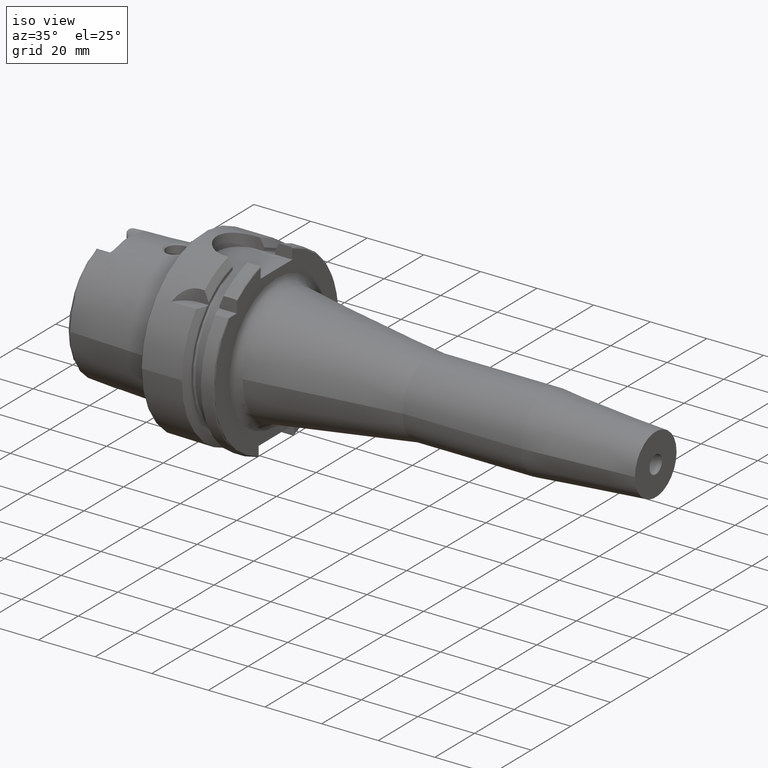
[diagram: clean part render]
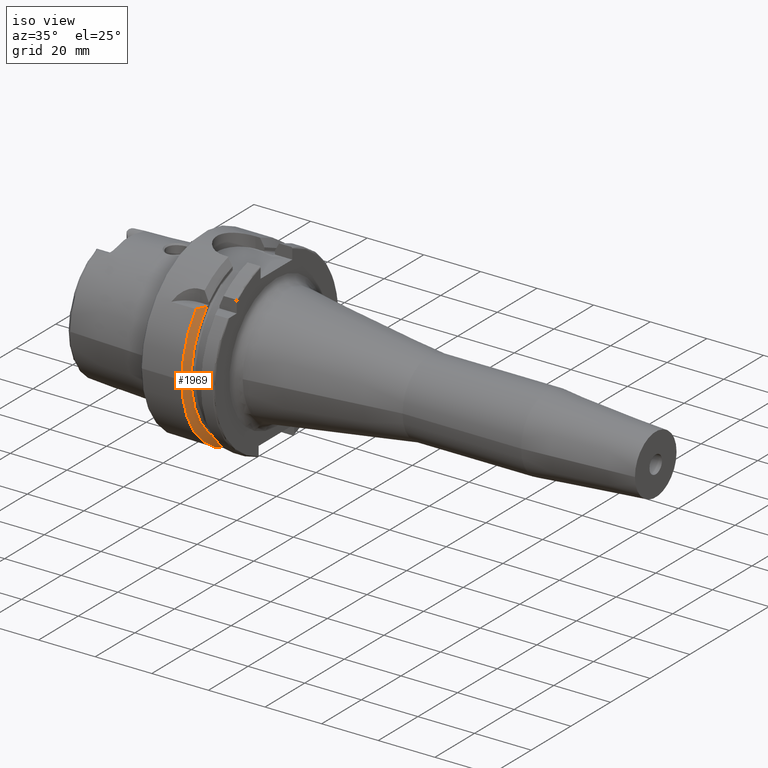
[diagram: same view with one face highlighted and labeled with its STEP entity id]
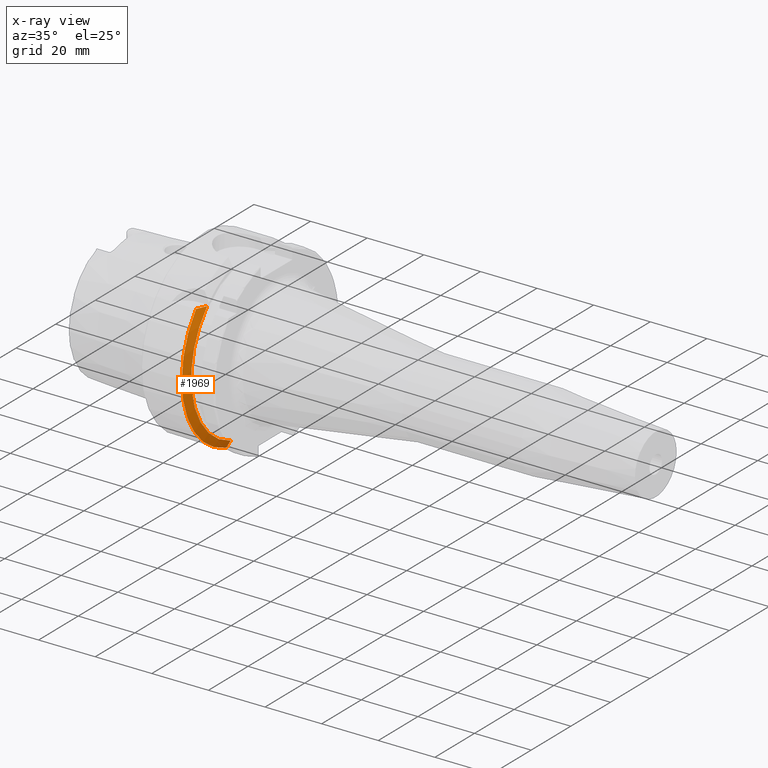
[diagram: x-ray of the same camera — body ghosted, the highlighted face saturated]
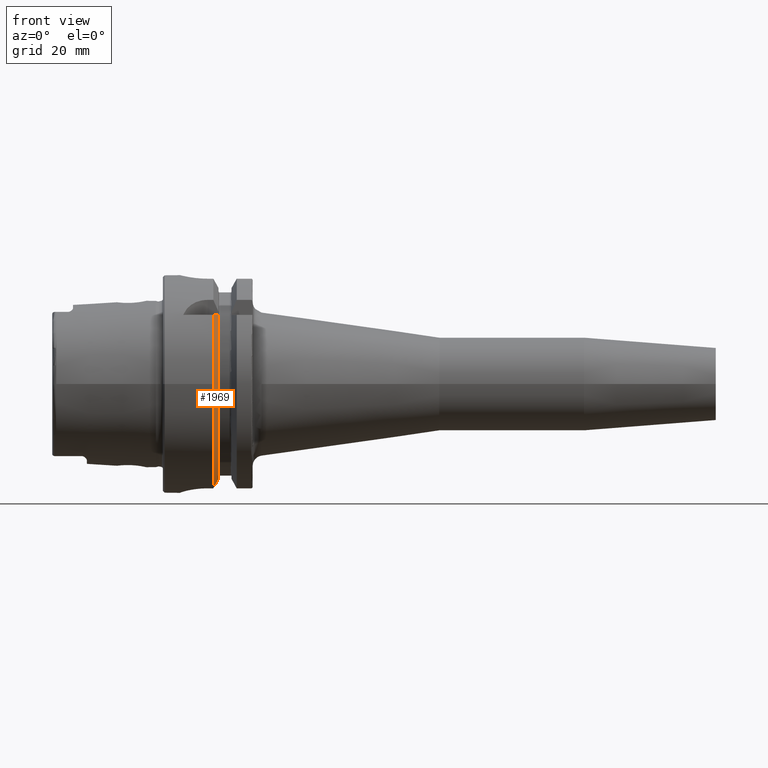
[diagram: same view with one face highlighted and labeled with its STEP entity id]
A machine part, iso view. The second image highlights one B-rep face of the part: STEP entity #1969.
The next image is the same camera in x-ray: the body ghosted, the highlighted face saturated — about 0% of this face is hidden behind the body in this view.
A second angle (front view) of the same face is appended — the face is thin or edge-on in the first view.
In plain terms, the highlighted conical surface has half-angle 60 deg.
Its self-contained STEP definition (entity closure, byte-faithful):
#18=(
BOUNDED_CURVE()
B_SPLINE_CURVE(2,(#3765,#3766,#3767),.UNSPECIFIED.,.F.,.F.)
B_SPLINE_CURVE_WITH_KNOTS((3,3),(0.,0.378858277140998),.UNSPECIFIED.)
CURVE()
GEOMETRIC_REPRESENTATION_ITEM()
RATIONAL_B_SPLINE_CURVE((1.,1.00166199353848,1.))
REPRESENTATION_ITEM('')
);
#21=(
BOUNDED_CURVE()
B_SPLINE_CURVE(2,(#3825,#3826,#3827),.UNSPECIFIED.,.F.,.F.)
B_SPLINE_CURVE_WITH_KNOTS((3,3),(0.,0.311314369989023),.UNSPECIFIED.)
CURVE()
GEOMETRIC_REPRESENTATION_ITEM()
RATIONAL_B_SPLINE_CURVE((1.,1.00102053193494,1.))
REPRESENTATION_ITEM('')
);
#402=CONICAL_SURFACE('',#2165,30.1987976320958,1.0471975511966);
#455=FACE_OUTER_BOUND('',#577,.T.);
#577=EDGE_LOOP('',(#1516,#1517,#1518,#1519,#1520));
#705=CIRCLE('',#2162,28.8975952641916);
#708=CIRCLE('',#2166,31.5);
#709=CIRCLE('',#2167,31.5);
#882=VERTEX_POINT('',#3757);
#885=VERTEX_POINT('',#3763);
#892=VERTEX_POINT('',#3811);
#896=VERTEX_POINT('',#3821);
#897=VERTEX_POINT('',#3823);
#1118=EDGE_CURVE('',#882,#885,#18,.T.);
#1128=EDGE_CURVE('',#882,#892,#705,.T.);
#1133=EDGE_CURVE('',#885,#896,#708,.T.);
#1134=EDGE_CURVE('',#896,#897,#709,.T.);
#1135=EDGE_CURVE('',#897,#892,#21,.T.);
#1516=ORIENTED_EDGE('',*,*,#1118,.T.);
#1517=ORIENTED_EDGE('',*,*,#1133,.T.);
#1518=ORIENTED_EDGE('',*,*,#1134,.T.);
#1519=ORIENTED_EDGE('',*,*,#1135,.T.);
#1520=ORIENTED_EDGE('',*,*,#1128,.F.);
#1969=ADVANCED_FACE('',(#455),#402,.T.);
#2162=AXIS2_PLACEMENT_3D('',#3812,#2559,#2560);
#2165=AXIS2_PLACEMENT_3D('',#3820,#2567,#2568);
#2166=AXIS2_PLACEMENT_3D('',#3822,#2569,#2570);
#2167=AXIS2_PLACEMENT_3D('',#3824,#2571,#2572);
#2559=DIRECTION('center_axis',(1.,0.,0.));
#2560=DIRECTION('ref_axis',(0.,0.,-1.));
#2567=DIRECTION('center_axis',(-1.,0.,0.));
#2568=DIRECTION('ref_axis',(0.,-0.966819045705046,-0.255462194584608));
#2569=DIRECTION('center_axis',(1.,0.,0.));
#2570=DIRECTION('ref_axis',(0.,0.,-1.));
#2571=DIRECTION('center_axis',(1.,0.,0.));
#2572=DIRECTION('ref_axis',(0.,0.,-1.));
#3757=CARTESIAN_POINT('',(16.125,-20.8583559288126,20.));
#3763=CARTESIAN_POINT('',(14.6225009252407,-24.3361870472759,20.));
#3765=CARTESIAN_POINT('Ctrl Pts',(16.125,-20.8583559288126,20.));
#3766=CARTESIAN_POINT('Ctrl Pts',(15.4315609602333,-22.5223452916163,20.));
#3767=CARTESIAN_POINT('Ctrl Pts',(14.6225009252407,-24.3361870472759,20.));
#3811=CARTESIAN_POINT('',(16.125,-9.,-27.4603534582684));
#3812=CARTESIAN_POINT('Origin',(16.125,0.,0.));
#3820=CARTESIAN_POINT('Origin',(15.3737504626203,0.,0.));
#3821=CARTESIAN_POINT('',(14.6225009252407,-31.5,-3.85763741731416E-15));
#3822=CARTESIAN_POINT('Origin',(14.6225009252407,0.,0.));
#3823=CARTESIAN_POINT('',(14.6225009252407,-9.,-30.1869176962472));
#3824=CARTESIAN_POINT('Origin',(14.6225009252407,0.,0.));
#3825=CARTESIAN_POINT('Ctrl Pts',(14.6225009252407,-9.,-30.1869176962472));
#3826=CARTESIAN_POINT('Ctrl Pts',(15.4092825889741,-9.,-28.7648946319013));
#3827=CARTESIAN_POINT('Ctrl Pts',(16.125,-9.,-27.4603534582684));